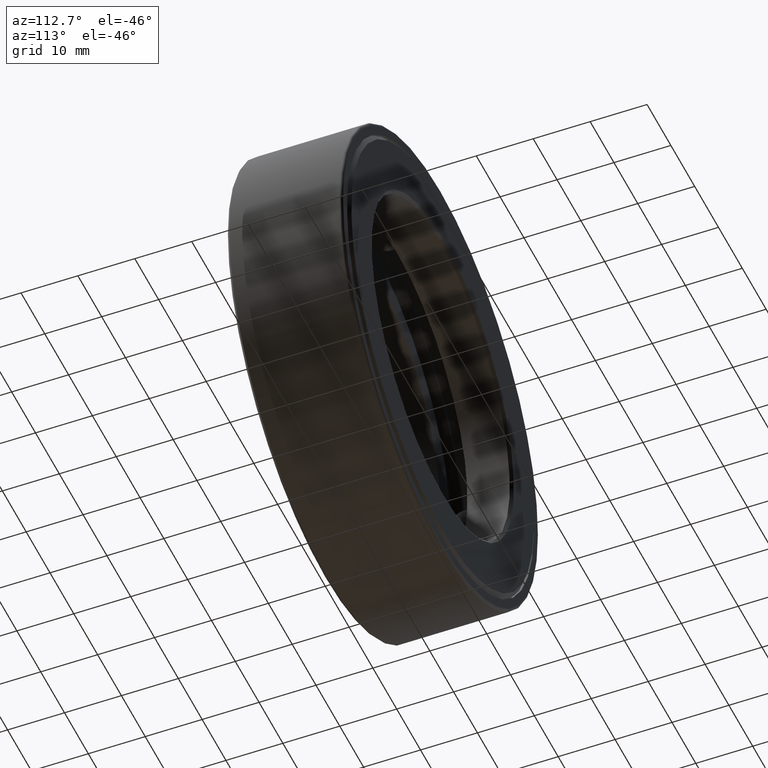
[diagram: clean part render]
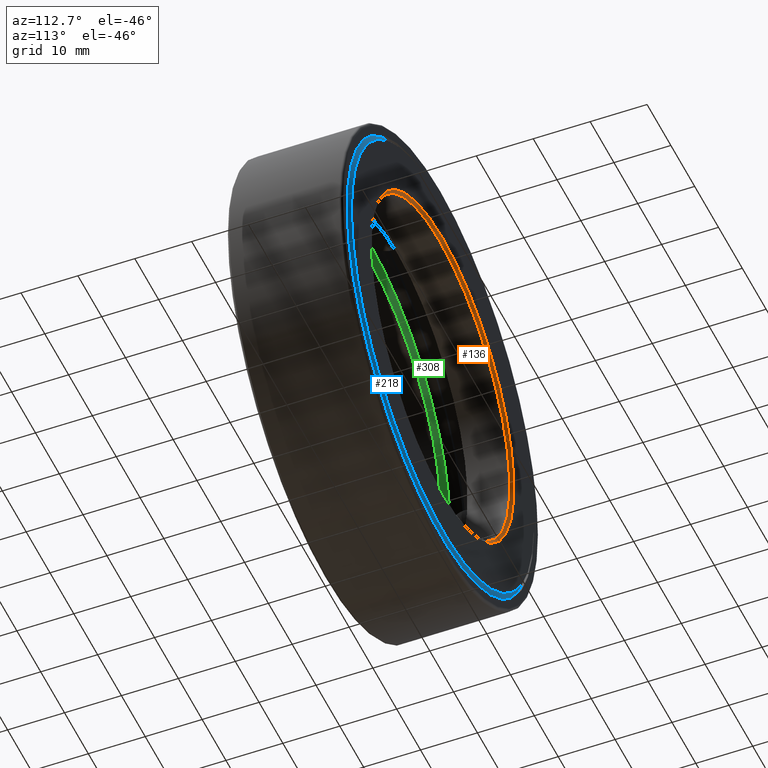
[diagram: same view with three faces highlighted in distinct colors, each labeled with its STEP entity id]
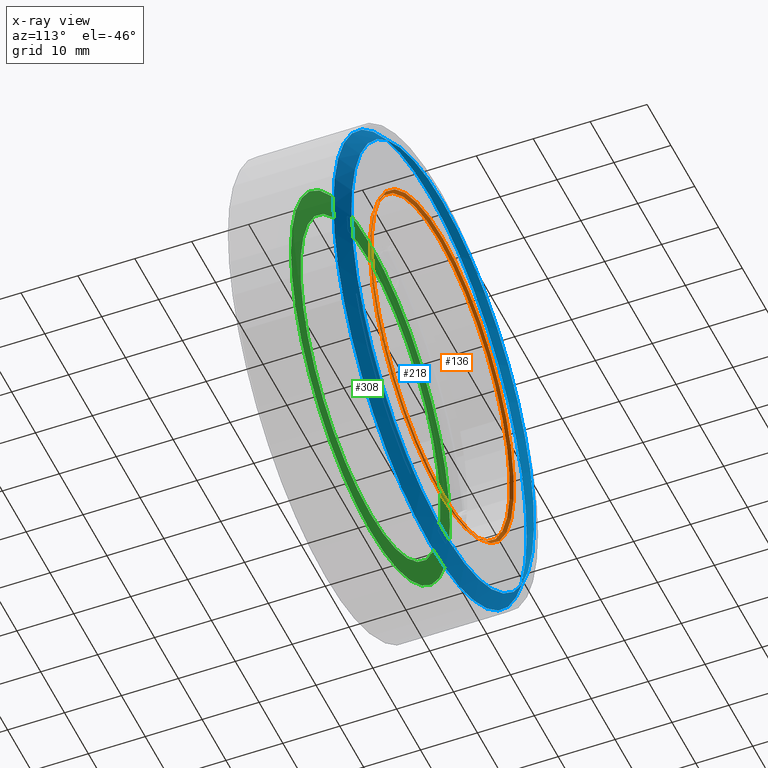
[diagram: x-ray of the same camera — body ghosted, the three highlighted faces saturated]
A machine part, auxiliary view with three faces highlighted in distinct colors.
The next image is the same camera in x-ray (body ghosted, the three faces saturated) — at least one of them is partly hidden behind the body in this view.
Their STEP definitions:

[orange] entity #136 — the highlighted conical surface has half-angle 45 deg.
#42 = ORIENTED_EDGE ( 'NONE', *, *, #580, .F. ) ;
#60 = DIRECTION ( 'NONE',  ( 0.0000000000000000000, 0.0000000000000000000, 1.000000000000000000 ) ) ;
#63 = CARTESIAN_POINT ( 'NONE',  ( 0.0000000000000000000, 0.7924999999999997600, 0.0000000000000000000 ) ) ;
#70 = EDGE_LOOP ( 'NONE', ( #584 ) ) ;
#91 = CARTESIAN_POINT ( 'NONE',  ( 0.0000000000000000000, 0.8125000000000000000, 1.176250000000000200 ) ) ;
#120 = FACE_OUTER_BOUND ( 'NONE', #70, .T. ) ;
#122 = AXIS2_PLACEMENT_3D ( 'NONE', #150, #328, #60 ) ;
#136 = ADVANCED_FACE ( 'NONE', ( #120, #258 ), #407, .F. ) ;
#150 = CARTESIAN_POINT ( 'NONE',  ( 0.0000000000000000000, 0.8125000000000000000, 0.0000000000000000000 ) ) ;
#166 = EDGE_CURVE ( 'NONE', #526, #526, #222, .T. ) ;
#189 = DIRECTION ( 'NONE',  ( -0.0000000000000000000, 1.000000000000000000, -0.0000000000000000000 ) ) ;
#212 = EDGE_LOOP ( 'NONE', ( #42 ) ) ;
#222 = CIRCLE ( 'NONE', #122, 1.176250000000000200 ) ;
#235 = VERTEX_POINT ( 'NONE', #298 ) ;
#258 = FACE_BOUND ( 'NONE', #212, .T. ) ;
#281 = DIRECTION ( 'NONE',  ( 0.0000000000000000000, 0.0000000000000000000, 1.000000000000000000 ) ) ;
#298 = CARTESIAN_POINT ( 'NONE',  ( 0.0000000000000000000, 0.7924999999999997600, 1.156250000000000000 ) ) ;
#328 = DIRECTION ( 'NONE',  ( -0.0000000000000000000, 1.000000000000000000, -0.0000000000000000000 ) ) ;
#356 = AXIS2_PLACEMENT_3D ( 'NONE', #373, #189, #413 ) ;
#373 = CARTESIAN_POINT ( 'NONE',  ( 0.0000000000000000000, 0.7924999999999997600, 0.0000000000000000000 ) ) ;
#407 = CONICAL_SURFACE ( 'NONE', #536, 1.156250000000000000, 0.7853981633974482800 ) ;
#413 = DIRECTION ( 'NONE',  ( 0.0000000000000000000, 0.0000000000000000000, 1.000000000000000000 ) ) ;
#522 = DIRECTION ( 'NONE',  ( -0.0000000000000000000, 1.000000000000000000, -0.0000000000000000000 ) ) ;
#526 = VERTEX_POINT ( 'NONE', #91 ) ;
#536 = AXIS2_PLACEMENT_3D ( 'NONE', #63, #522, #281 ) ;
#565 = CIRCLE ( 'NONE', #356, 1.156250000000000000 ) ;
#580 = EDGE_CURVE ( 'NONE', #235, #235, #565, .T. ) ;
#584 = ORIENTED_EDGE ( 'NONE', *, *, #166, .T. ) ;

[blue] entity #218 — the highlighted conical surface has half-angle 45 deg.
#1 = DIRECTION ( 'NONE',  ( -0.0000000000000000000, 1.000000000000000000, -0.0000000000000000000 ) ) ;
#43 = FACE_BOUND ( 'NONE', #463, .T. ) ;
#61 = EDGE_CURVE ( 'NONE', #248, #248, #423, .T. ) ;
#68 = CARTESIAN_POINT ( 'NONE',  ( 0.0000000000000000000, 0.8124999999999998900, 1.509999999999999800 ) ) ;
#118 = DIRECTION ( 'NONE',  ( 0.0000000000000000000, -1.000000000000000000, 0.0000000000000000000 ) ) ;
#127 = CARTESIAN_POINT ( 'NONE',  ( 0.0000000000000000000, 0.7245000000000001400, 0.0000000000000000000 ) ) ;
#218 = ADVANCED_FACE ( 'NONE', ( #285, #43 ), #271, .T. ) ;
#248 = VERTEX_POINT ( 'NONE', #566 ) ;
#264 = EDGE_LOOP ( 'NONE', ( #556 ) ) ;
#271 = CONICAL_SURFACE ( 'NONE', #278, 1.509999999999999800, 0.7853981633974498300 ) ;
#274 = DIRECTION ( 'NONE',  ( 0.0000000000000000000, 0.0000000000000000000, -1.000000000000000000 ) ) ;
#278 = AXIS2_PLACEMENT_3D ( 'NONE', #392, #118, #274 ) ;
#285 = FACE_OUTER_BOUND ( 'NONE', #264, .T. ) ;
#320 = DIRECTION ( 'NONE',  ( 0.0000000000000000000, 0.0000000000000000000, 1.000000000000000000 ) ) ;
#325 = VERTEX_POINT ( 'NONE', #68 ) ;
#361 = DIRECTION ( 'NONE',  ( 0.0000000000000000000, 0.0000000000000000000, 1.000000000000000000 ) ) ;
#377 = CARTESIAN_POINT ( 'NONE',  ( 0.0000000000000000000, 0.8124999999999998900, 0.0000000000000000000 ) ) ;
#392 = CARTESIAN_POINT ( 'NONE',  ( 0.0000000000000000000, 0.8124999999999998900, 0.0000000000000000000 ) ) ;
#423 = CIRCLE ( 'NONE', #564, 1.597999999999999600 ) ;
#459 = AXIS2_PLACEMENT_3D ( 'NONE', #377, #509, #320 ) ;
#463 = EDGE_LOOP ( 'NONE', ( #585 ) ) ;
#473 = CIRCLE ( 'NONE', #459, 1.509999999999999800 ) ;
#509 = DIRECTION ( 'NONE',  ( -0.0000000000000000000, 1.000000000000000000, -0.0000000000000000000 ) ) ;
#554 = EDGE_CURVE ( 'NONE', #325, #325, #473, .T. ) ;
#556 = ORIENTED_EDGE ( 'NONE', *, *, #61, .T. ) ;
#564 = AXIS2_PLACEMENT_3D ( 'NONE', #127, #1, #361 ) ;
#566 = CARTESIAN_POINT ( 'NONE',  ( 0.0000000000000000000, 0.7245000000000001400, 1.597999999999999600 ) ) ;
#585 = ORIENTED_EDGE ( 'NONE', *, *, #554, .F. ) ;

[green] entity #308 — the highlighted planar face has unit normal (0, -1, 0).
#4 = FACE_OUTER_BOUND ( 'NONE', #333, .T. ) ;
#10 = DIRECTION ( 'NONE',  ( 0.0000000000000000000, 0.0000000000000000000, 1.000000000000000000 ) ) ;
#50 = PLANE ( 'NONE',  #195 ) ;
#57 = CARTESIAN_POINT ( 'NONE',  ( 0.0000000000000000000, 0.3125000000000000000, 0.0000000000000000000 ) ) ;
#65 = CIRCLE ( 'NONE', #553, 1.314750000000000300 ) ;
#73 = EDGE_LOOP ( 'NONE', ( #250 ) ) ;
#83 = AXIS2_PLACEMENT_3D ( 'NONE', #560, #318, #10 ) ;
#85 = VERTEX_POINT ( 'NONE', #402 ) ;
#113 = CARTESIAN_POINT ( 'NONE',  ( 0.0000000000000000000, 0.3125000000000000000, 1.156250000000000000 ) ) ;
#195 = AXIS2_PLACEMENT_3D ( 'NONE', #290, #588, #424 ) ;
#197 = DIRECTION ( 'NONE',  ( 0.0000000000000000000, 0.0000000000000000000, 1.000000000000000000 ) ) ;
#250 = ORIENTED_EDGE ( 'NONE', *, *, #252, .F. ) ;
#252 = EDGE_CURVE ( 'NONE', #442, #442, #335, .T. ) ;
#290 = CARTESIAN_POINT ( 'NONE',  ( 0.0000000000000000000, 0.3125000000000000000, 0.0000000000000000000 ) ) ;
#296 = EDGE_CURVE ( 'NONE', #85, #85, #65, .T. ) ;
#308 = ADVANCED_FACE ( 'NONE', ( #594, #4 ), #50, .F. ) ;
#318 = DIRECTION ( 'NONE',  ( -0.0000000000000000000, 1.000000000000000000, -0.0000000000000000000 ) ) ;
#333 = EDGE_LOOP ( 'NONE', ( #351 ) ) ;
#335 = CIRCLE ( 'NONE', #83, 1.156250000000000000 ) ;
#351 = ORIENTED_EDGE ( 'NONE', *, *, #296, .T. ) ;
#402 = CARTESIAN_POINT ( 'NONE',  ( 0.0000000000000000000, 0.3125000000000000000, 1.314750000000000300 ) ) ;
#424 = DIRECTION ( 'NONE',  ( 0.0000000000000000000, -0.0000000000000000000, -1.000000000000000000 ) ) ;
#442 = VERTEX_POINT ( 'NONE', #113 ) ;
#529 = DIRECTION ( 'NONE',  ( -0.0000000000000000000, 1.000000000000000000, -0.0000000000000000000 ) ) ;
#553 = AXIS2_PLACEMENT_3D ( 'NONE', #57, #529, #197 ) ;
#560 = CARTESIAN_POINT ( 'NONE',  ( 0.0000000000000000000, 0.3125000000000000000, 0.0000000000000000000 ) ) ;
#588 = DIRECTION ( 'NONE',  ( 0.0000000000000000000, -1.000000000000000000, 0.0000000000000000000 ) ) ;
#594 = FACE_BOUND ( 'NONE', #73, .T. ) ;